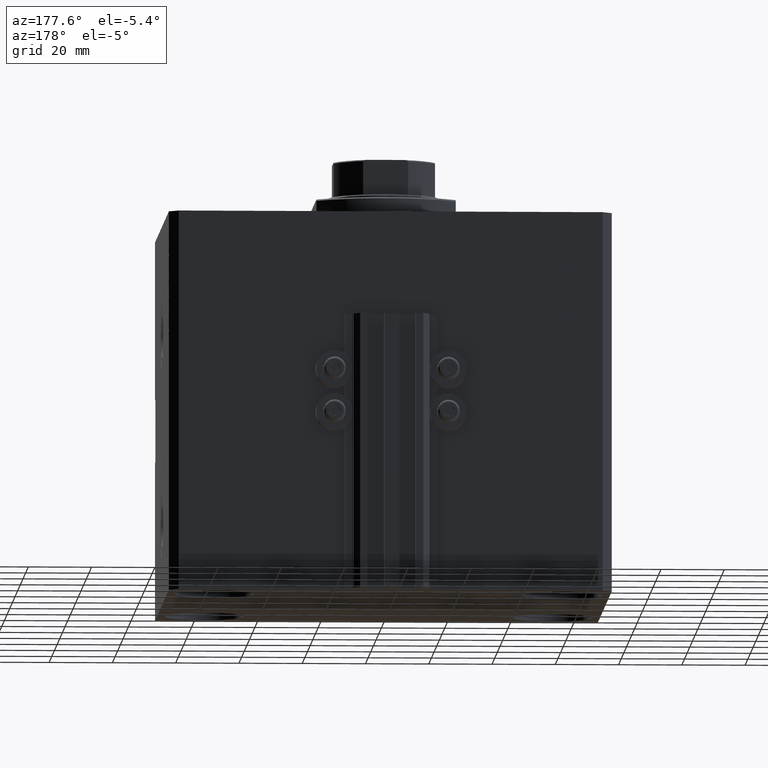
[diagram: clean part render]
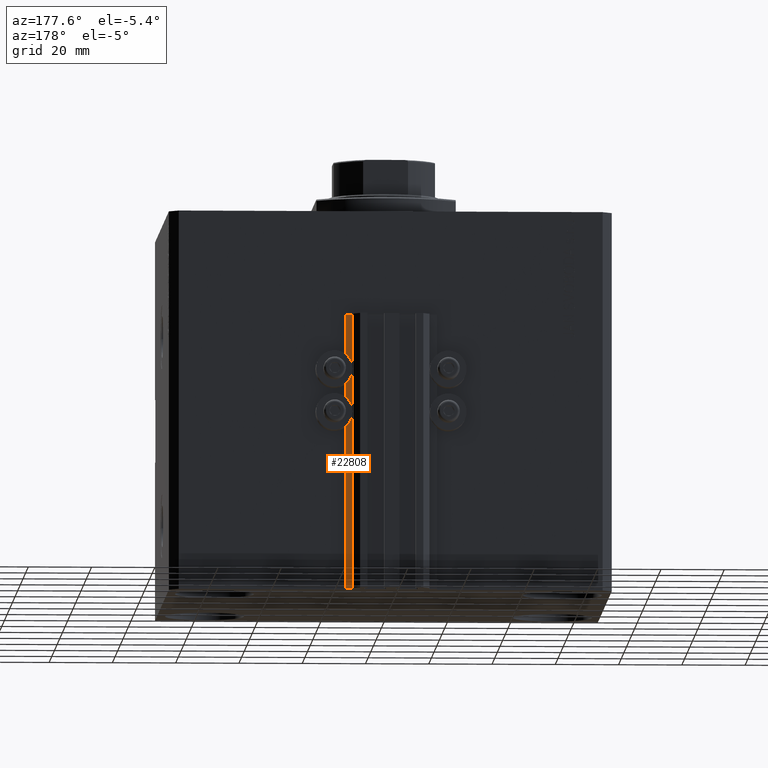
[diagram: same view with one face highlighted and labeled with its STEP entity id]
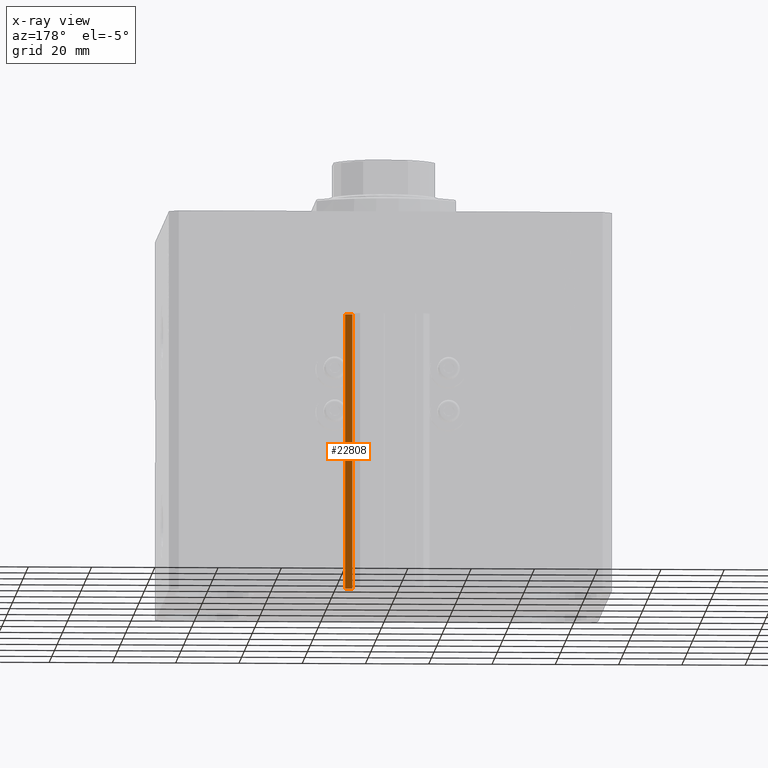
[diagram: x-ray of the same camera — body ghosted, the highlighted face saturated]
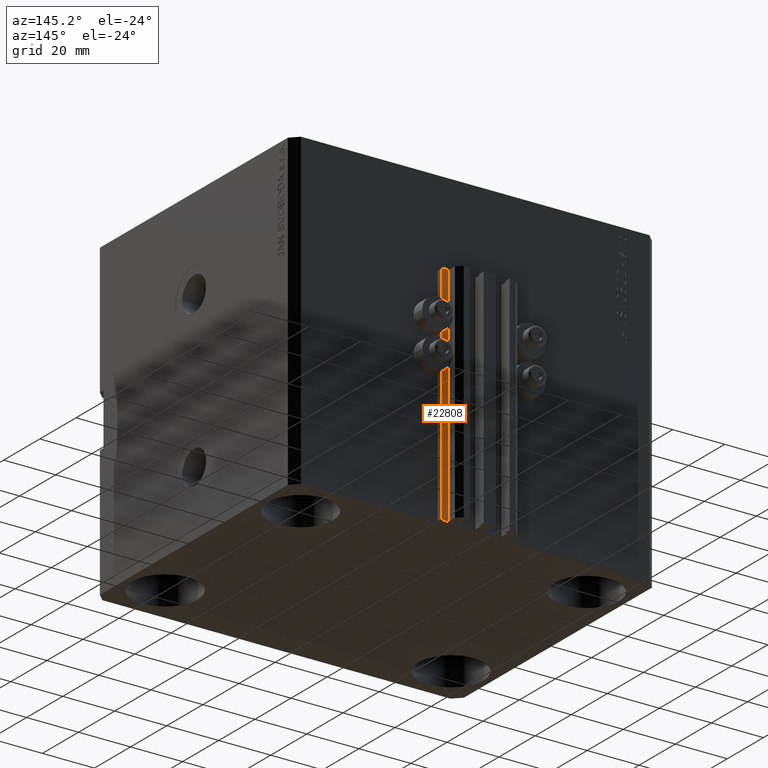
[diagram: same view with one face highlighted and labeled with its STEP entity id]
A machine part, auxiliary view. The second image highlights one B-rep face of the part: STEP entity #22808.
The next image is the same camera in x-ray: the body ghosted, the highlighted face saturated — about 0% of this face is hidden behind the body in this view.
A second angle (auxiliary view) of the same face is appended — the face is thin or edge-on in the first view.
In plain terms, the highlighted planar face has unit normal (0, 1, 0).
Its self-contained STEP definition (entity closure, byte-faithful):
#1580 = ORIENTED_EDGE ( 'NONE', *, *, #15682, .F. ) ;
#1692 = VERTEX_POINT ( 'NONE', #8916 ) ;
#1874 = EDGE_CURVE ( 'NONE', #19741, #13204, #39199, .T. ) ;
#2615 = VECTOR ( 'NONE', #42536, 1000.000000000000000 ) ;
#2901 = ORIENTED_EDGE ( 'NONE', *, *, #4976, .F. ) ;
#4976 = EDGE_CURVE ( 'NONE', #1692, #33051, #12931, .T. ) ;
#6022 = CARTESIAN_POINT ( 'NONE',  ( 12.20000000000000107, 57.50000000000002132, -120.0000000000000000 ) ) ;
#6305 = FACE_OUTER_BOUND ( 'NONE', #10796, .T. ) ;
#8728 = CARTESIAN_POINT ( 'NONE',  ( 14.49999999999999645, 57.50000000000002132, -33.00000000000000000 ) ) ;
#8916 = CARTESIAN_POINT ( 'NONE',  ( 14.49999999999999645, 57.50000000000002132, -120.0000000000000000 ) ) ;
#9222 = DIRECTION ( 'NONE',  ( -1.000000000000000000, 0.000000000000000000, 0.000000000000000000 ) ) ;
#9839 = CARTESIAN_POINT ( 'NONE',  ( 12.20000000000000107, 57.50000000000002132, -120.0000000000000000 ) ) ;
#10254 = ORIENTED_EDGE ( 'NONE', *, *, #1874, .T. ) ;
#10796 = EDGE_LOOP ( 'NONE', ( #1580, #2901, #46919, #10254 ) ) ;
#12931 = LINE ( 'NONE', #39329, #2615 ) ;
#13204 = VERTEX_POINT ( 'NONE', #46000 ) ;
#15682 = EDGE_CURVE ( 'NONE', #33051, #13204, #43023, .T. ) ;
#17663 = DIRECTION ( 'NONE',  ( 0.000000000000000000, 0.000000000000000000, 1.000000000000000000 ) ) ;
#19741 = VERTEX_POINT ( 'NONE', #6022 ) ;
#20889 = DIRECTION ( 'NONE',  ( 0.000000000000000000, 1.000000000000000000, -0.000000000000000000 ) ) ;
#22808 = ADVANCED_FACE ( 'NONE', ( #6305 ), #25304, .T. ) ;
#24595 = LINE ( 'NONE', #32001, #36421 ) ;
#25304 = PLANE ( 'NONE',  #27467 ) ;
#27467 = AXIS2_PLACEMENT_3D ( 'NONE', #35685, #20889, #17663 ) ;
#28343 = CARTESIAN_POINT ( 'NONE',  ( 14.49999999999999645, 57.50000000000002132, -33.00000000000000000 ) ) ;
#30271 = VECTOR ( 'NONE', #39450, 1000.000000000000000 ) ;
#32001 = CARTESIAN_POINT ( 'NONE',  ( 14.49999999999999645, 57.50000000000002132, -120.0000000000000000 ) ) ;
#33051 = VERTEX_POINT ( 'NONE', #28343 ) ;
#35685 = CARTESIAN_POINT ( 'NONE',  ( 14.49999999999999645, 57.50000000000002132, -120.0000000000000000 ) ) ;
#36421 = VECTOR ( 'NONE', #47059, 1000.000000000000000 ) ;
#39199 = LINE ( 'NONE', #9839, #30271 ) ;
#39329 = CARTESIAN_POINT ( 'NONE',  ( 14.49999999999999645, 57.50000000000002132, -120.0000000000000000 ) ) ;
#39450 = DIRECTION ( 'NONE',  ( 0.000000000000000000, 0.000000000000000000, 1.000000000000000000 ) ) ;
#39886 = VECTOR ( 'NONE', #9222, 1000.000000000000000 ) ;
#42536 = DIRECTION ( 'NONE',  ( 0.000000000000000000, 0.000000000000000000, 1.000000000000000000 ) ) ;
#43023 = LINE ( 'NONE', #8728, #39886 ) ;
#45414 = EDGE_CURVE ( 'NONE', #1692, #19741, #24595, .T. ) ;
#46000 = CARTESIAN_POINT ( 'NONE',  ( 12.20000000000000107, 57.50000000000002132, -33.00000000000000000 ) ) ;
#46919 = ORIENTED_EDGE ( 'NONE', *, *, #45414, .T. ) ;
#47059 = DIRECTION ( 'NONE',  ( -1.000000000000000000, 0.000000000000000000, 0.000000000000000000 ) ) ;